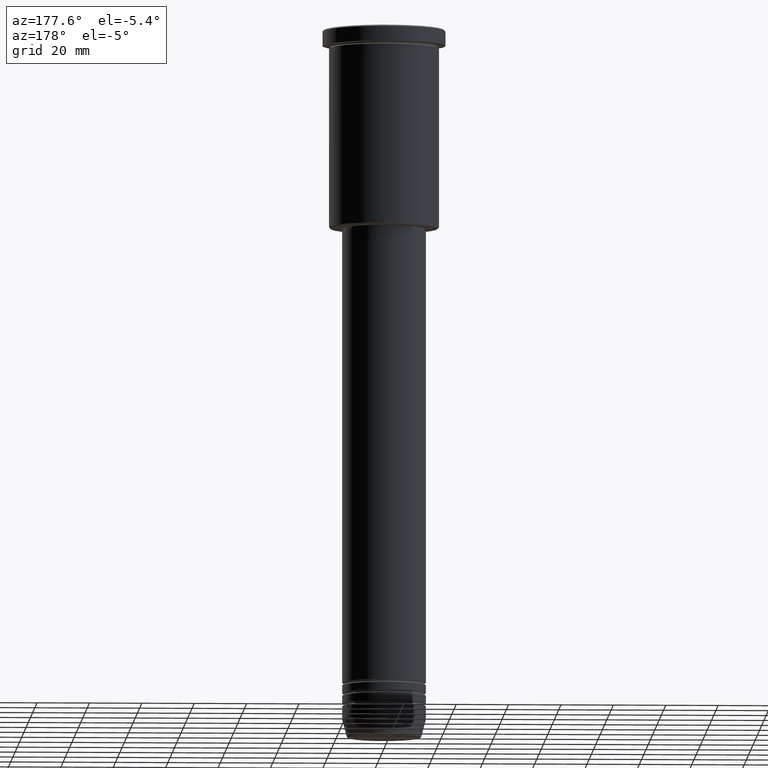
[diagram: clean part render]
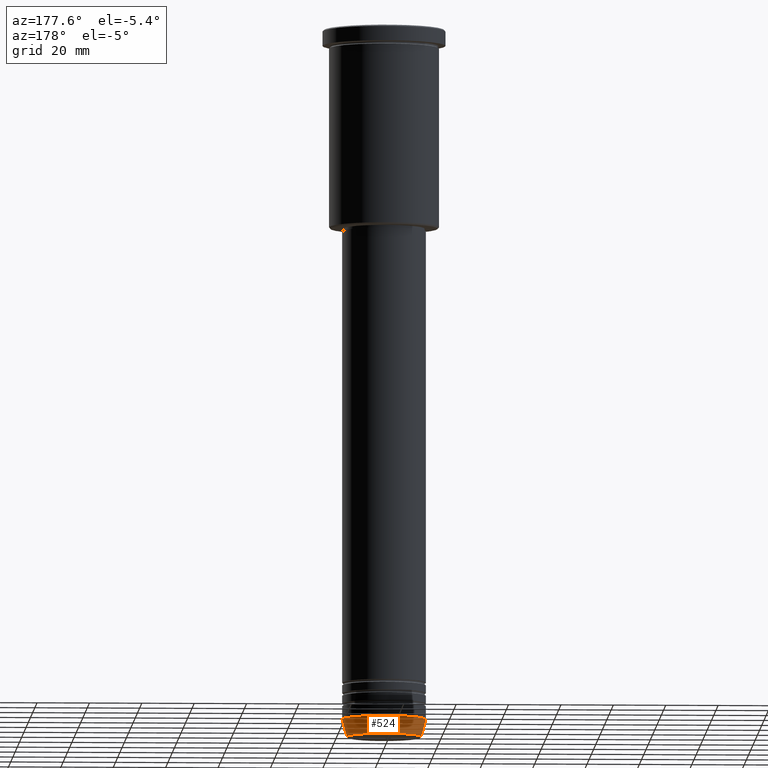
[diagram: same view with one face highlighted and labeled with its STEP entity id]
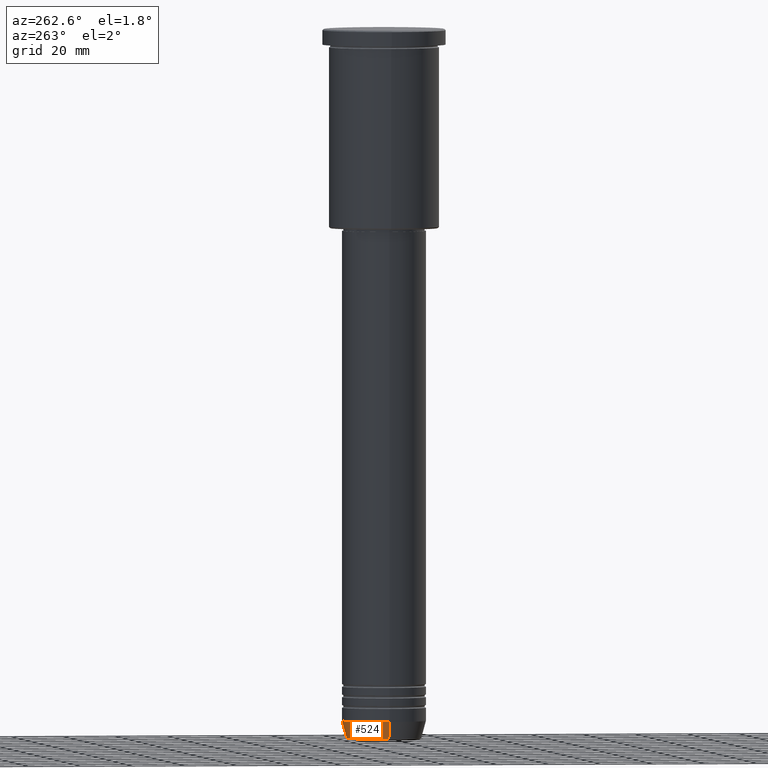
[diagram: same view with one face highlighted and labeled with its STEP entity id]
A machine part, auxiliary view. The second image highlights one B-rep face of the part: STEP entity #524.
A second angle (auxiliary view) of the same face is appended — the face is thin or edge-on in the first view.
In plain terms, the highlighted conical surface has half-angle 15 deg.
Its self-contained STEP definition (entity closure, byte-faithful):
#48 = FACE_OUTER_BOUND ( 'NONE', #666, .T. ) ;
#105 = DIRECTION ( 'NONE',  ( 1.000000000000000000, 0.000000000000000000, 0.000000000000000000 ) ) ;
#132 = CARTESIAN_POINT ( 'NONE',  ( -16.00000000000000000, 1.959434878635765131E-15, -264.0000000000000000 ) ) ;
#183 = DIRECTION ( 'NONE',  ( -0.000000000000000000, -0.000000000000000000, 1.000000000000000000 ) ) ;
#190 = CARTESIAN_POINT ( 'NONE',  ( -16.00000000000000000, 1.959434878635765131E-15, -264.0000000000000000 ) ) ;
#203 = AXIS2_PLACEMENT_3D ( 'NONE', #691, #1056, #1095 ) ;
#223 = VECTOR ( 'NONE', #823, 1000.000000000000000 ) ;
#312 = EDGE_CURVE ( 'NONE', #606, #409, #1007, .T. ) ;
#367 = VECTOR ( 'NONE', #944, 1000.000000000000000 ) ;
#381 = DIRECTION ( 'NONE',  ( 1.000000000000000000, 0.000000000000000000, 0.000000000000000000 ) ) ;
#397 = ORIENTED_EDGE ( 'NONE', *, *, #1129, .T. ) ;
#400 = AXIS2_PLACEMENT_3D ( 'NONE', #843, #183, #381 ) ;
#409 = VERTEX_POINT ( 'NONE', #132 ) ;
#419 = CONICAL_SURFACE ( 'NONE', #203, 16.00000000000000000, 0.2617993877991500740 ) ;
#447 = CARTESIAN_POINT ( 'NONE',  ( 14.22365507213718772, 0.000000000000000000, -270.6294095225512706 ) ) ;
#524 = ADVANCED_FACE ( 'NONE', ( #48 ), #419, .T. ) ;
#534 = VERTEX_POINT ( 'NONE', #447 ) ;
#575 = LINE ( 'NONE', #190, #223 ) ;
#581 = CARTESIAN_POINT ( 'NONE',  ( 16.00000000000000000, 0.000000000000000000, -264.0000000000000000 ) ) ;
#606 = VERTEX_POINT ( 'NONE', #1086 ) ;
#611 = CIRCLE ( 'NONE', #400, 14.22365507213718772 ) ;
#618 = CARTESIAN_POINT ( 'NONE',  ( -14.22365507213718772, 1.850665122131323337E-15, -270.6294095225512706 ) ) ;
#666 = EDGE_LOOP ( 'NONE', ( #397, #861, #1136, #906 ) ) ;
#691 = CARTESIAN_POINT ( 'NONE',  ( 0.000000000000000000, 0.000000000000000000, -264.0000000000000000 ) ) ;
#735 = AXIS2_PLACEMENT_3D ( 'NONE', #1106, #1114, #105 ) ;
#823 = DIRECTION ( 'NONE',  ( -0.2588190451025213501, 3.169619151431772337E-17, 0.9659258262890680902 ) ) ;
#843 = CARTESIAN_POINT ( 'NONE',  ( 0.000000000000000000, 0.000000000000000000, -270.6294095225512706 ) ) ;
#861 = ORIENTED_EDGE ( 'NONE', *, *, #1102, .T. ) ;
#894 = EDGE_CURVE ( 'NONE', #534, #606, #959, .T. ) ;
#906 = ORIENTED_EDGE ( 'NONE', *, *, #894, .F. ) ;
#944 = DIRECTION ( 'NONE',  ( 0.2588190451025213501, 0.000000000000000000, 0.9659258262890680902 ) ) ;
#959 = LINE ( 'NONE', #581, #367 ) ;
#989 = VERTEX_POINT ( 'NONE', #618 ) ;
#1007 = CIRCLE ( 'NONE', #735, 16.00000000000000000 ) ;
#1056 = DIRECTION ( 'NONE',  ( -0.000000000000000000, -0.000000000000000000, 1.000000000000000000 ) ) ;
#1086 = CARTESIAN_POINT ( 'NONE',  ( 16.00000000000000000, 0.000000000000000000, -264.0000000000000000 ) ) ;
#1095 = DIRECTION ( 'NONE',  ( 1.000000000000000000, 0.000000000000000000, 0.000000000000000000 ) ) ;
#1102 = EDGE_CURVE ( 'NONE', #989, #409, #575, .T. ) ;
#1106 = CARTESIAN_POINT ( 'NONE',  ( 0.000000000000000000, 0.000000000000000000, -264.0000000000000000 ) ) ;
#1114 = DIRECTION ( 'NONE',  ( -0.000000000000000000, -0.000000000000000000, 1.000000000000000000 ) ) ;
#1129 = EDGE_CURVE ( 'NONE', #534, #989, #611, .T. ) ;
#1136 = ORIENTED_EDGE ( 'NONE', *, *, #312, .F. ) ;